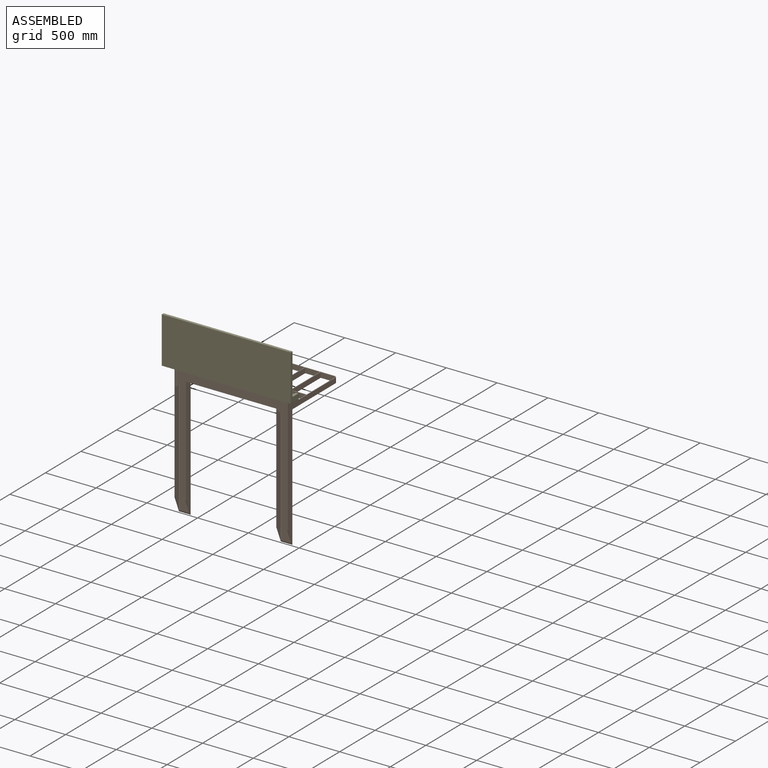
[diagram: assembled view]
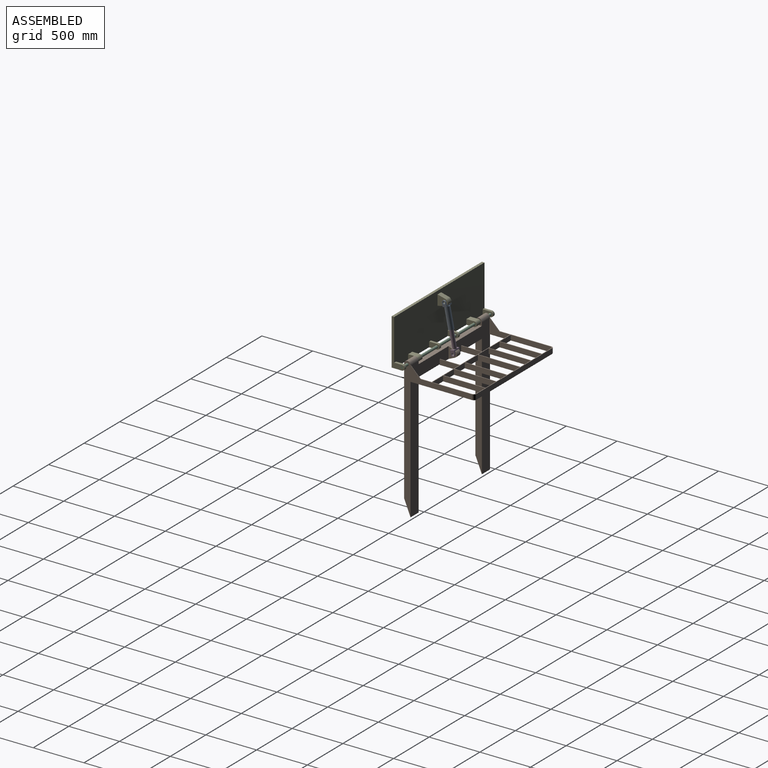
[diagram: assembled view, second angle]
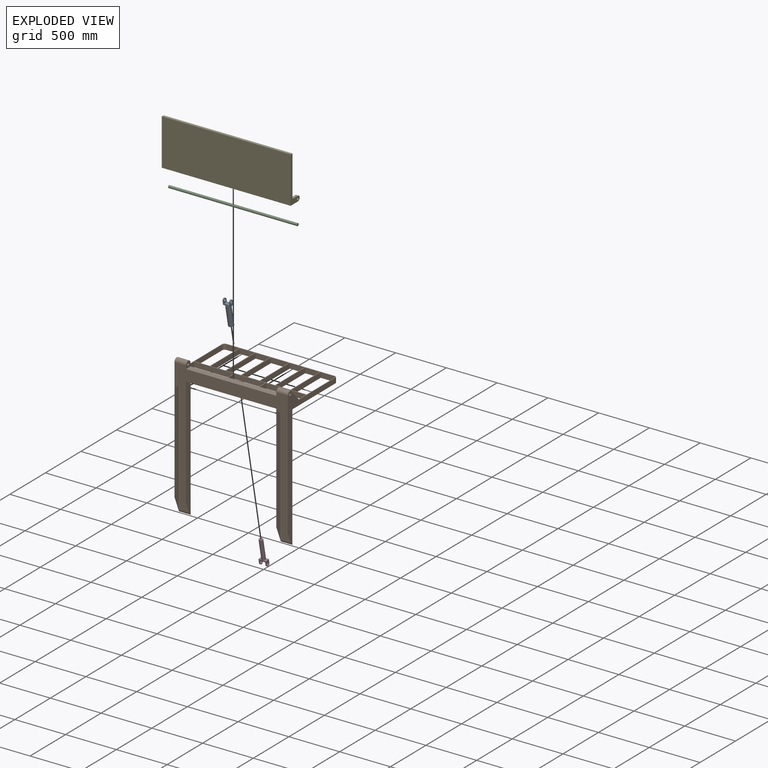
[diagram: exploded view]
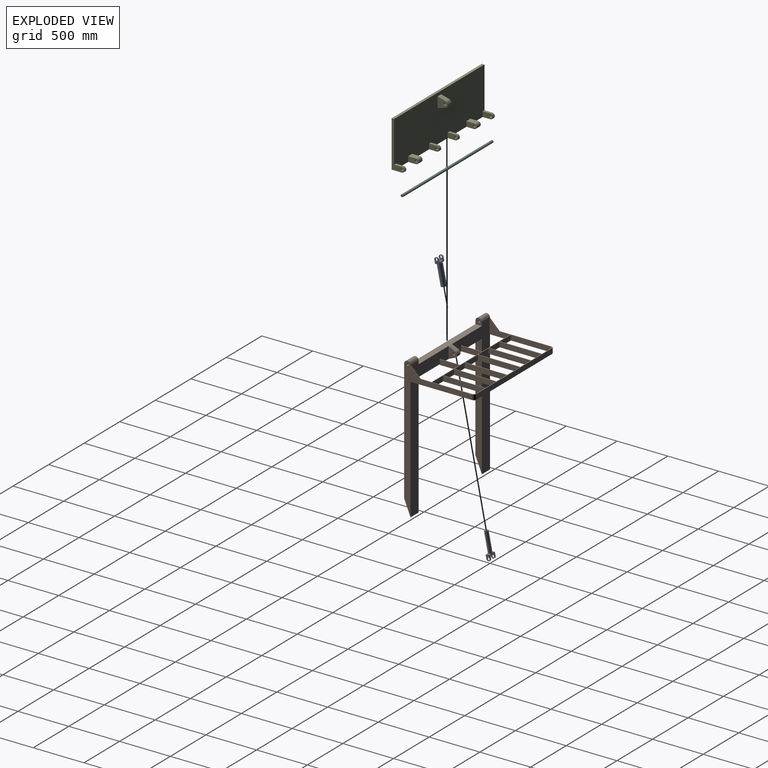
[diagram: exploded view, second angle]
ASSEMBLY  parts=5 mates=5
PART A: 19 faces, bbox 260.4x76.2x50.8 mm
  f0: plane 76.2x38.1mm, normal (0,0,1), area 1612.9mm2, adj f2,f4,f10,f11,f12,f14,f15,f16
  f1: plane 76.2x38.1mm, normal (0,0,-1), area 1612.9mm2, adj f2,f9,f10,f11,f12,f14,f15,f16
  f2: cylinder r=19.05mm len=38.1mm, axis (0,1,0), area 760.1mm2, adj f0,f1,f15,f17
  f3: cylinder r=12.7mm len=25.4mm, axis (0,1,0), area 1013.4mm2, adj f15,f17
  f4: plane 33.6x6.35mm, normal (1,0,0), area 146.2mm2, adj f0,f5
  f5: cylinder r=25.4mm len=203.2mm, axis (-1,0,0), area 32429.3mm2, adj f4,f7,f9,f10,f11
  f6: cylinder r=19.05mm len=196.85mm, axis (-1,0,0), area 23561.9mm2, adj f7,f8
  f7: plane 50.8x50.8mm, normal (-1,0,0), area 886.7mm2, adj f5,f6
  f8: plane 38.1x38.1mm, normal (-1,0,0), area 1140.1mm2, adj f6
  f9: plane 33.6x6.35mm, normal (1,0,0), area 146.2mm2, adj f1,f5
  f10: plane 38.1x21.3mm, normal (-1,0,0), area 584.4mm2, adj f0,f1,f5,f15
  f11: plane 38.1x21.3mm, normal (-1,0,0), area 584.4mm2, adj f0,f1,f5,f14
  f12: cylinder r=19.05mm len=38.1mm, axis (0,1,0), area 760.1mm2, adj f0,f1,f14,f18
  f13: cylinder r=12.7mm len=25.4mm, axis (0,1,0), area 1013.4mm2, adj f14,f18
  f14: plane 57.15x38.1mm, normal (0,-1,0), area 1514.9mm2, adj f0,f1,f11,f12,f13
  f15: plane 57.15x38.1mm, normal (0,1,0), area 1514.9mm2, adj f0,f1,f2,f3,f10
  f16: plane 50.8x38.1mm, normal (1,0,0), area 1935.5mm2, adj f0,f1,f17,f18
  f17: plane 44.45x38.1mm, normal (0,-1,0), area 1031.1mm2, adj f0,f1,f2,f3,f16
  f18: plane 44.45x38.1mm, normal (0,1,0), area 1031.1mm2, adj f0,f1,f12,f13,f16
PART B: 93 faces, bbox 1117.6x1384.3x693.7 mm
  f0: plane 1117.6x630.2mm, normal (0,-1,0), area 39151.3mm2, adj f2,f8,f24,f42,f43,f44,f45,f46
  f1: plane 1352.55x533.4mm, normal (0,0,1), area 201572.2mm2, adj f4,f6,f8,f9,f15,f16,f17,f34
  f2: plane 1352.55x533.4mm, normal (0,0,1), area 201249.6mm2, adj f0,f16,f17,f18,f24,f26,f28,f29
  f3: plane 101.6x50.8mm, normal (0,1,0), area 5144mm2, adj f10,f11,f12,f13,f14,f38
  f4: plane 63.5x63.5mm, normal (-1,0,0), area 3092.9mm2, adj f1,f5,f6,f7,f17
  f5: plane 1200.15x1117.6mm, normal (0,0,-1), area 170160.9mm2, adj f4,f6,f8,f9,f10,f14,f15,f16
  f6: cylinder r=31.75mm len=114.3mm, axis (-1,0,0), area 11400.9mm2, adj f1,f4,f5,f8,f85
  f7: cylinder r=12.7mm len=114.3mm, axis (-1,0,0), area 9120.7mm2, adj f4,f8
  f8: plane 1384.3x668.3mm, normal (1,0,0), area 117385.1mm2, adj f0,f1,f5,f6,f7,f15,f16,f54
  f9: plane 1206.5x63.5mm, normal (-1,0,0), area 71774.1mm2, adj f1,f5,f15,f16
  f10: plane 1290.32x50.8mm, normal (-1,0,0), area 61080.5mm2, adj f3,f5,f11,f15,f38,f39,f40,f41
  f11: cylinder r=6.35mm len=1305.56mm, axis (0,-1,0), area 12967.1mm2, adj f3,f10,f12,f15
  f12: plane 1305.56x88.9mm, normal (0,0,-1), area 116064.3mm2, adj f3,f11,f13,f15
  f13: cylinder r=6.35mm len=1305.56mm, axis (0,-1,0), area 12967.1mm2, adj f3,f12,f14,f15
  f14: plane 1290.32x50.8mm, normal (1,0,0), area 61564.4mm2, adj f3,f5,f13,f15,f38,f39,f40,f41
  f15: plane 152.4x114.3mm, normal (0,0.38,-0.92), area 3819.2mm2, adj f1,f5,f8,f9,f10,f11,f12,f13
  f16: plane 1117.6x693.7mm, normal (0,1,0), area 96812.4mm2, adj f1,f2,f5,f8,f9,f24,f29,f32
  f17: plane 889x63.5mm, normal (0,-1,0), area 56451.5mm2, adj f1,f2,f4,f5,f28,f30
  f18: plane 152.4x114.3mm, normal (0,0.38,-0.92), area 3819.2mm2, adj f2,f5,f19,f20,f21,f22,f23,f24
  f19: plane 1290.32x50.8mm, normal (-1,0,0), area 61725.7mm2, adj f5,f18,f20,f27,f36,f37
  f20: cylinder r=6.35mm len=1305.56mm, axis (0,-1,0), area 12967.1mm2, adj f18,f19,f21,f27
  f21: plane 1305.56x88.9mm, normal (0,0,-1), area 116064.3mm2, adj f18,f20,f22,f27
  f22: cylinder r=6.35mm len=1305.56mm, axis (0,-1,0), area 12967.1mm2, adj f18,f21,f23,f27
  f23: plane 1290.32x50.8mm, normal (1,0,0), area 61241.8mm2, adj f5,f18,f22,f27,f36,f37
  f24: plane 1384.3x668.3mm, normal (-1,0,0), area 117385.1mm2, adj f0,f2,f5,f16,f18,f25,f26,f52
  f25: cylinder r=12.7mm len=114.3mm, axis (1,0,0), area 9120.7mm2, adj f24,f28
  f26: cylinder r=31.75mm len=114.3mm, axis (1,0,0), area 11400.9mm2, adj f2,f5,f24,f28,f86
  f27: plane 101.6x50.8mm, normal (0,1,0), area 5144mm2, adj f19,f20,f21,f22,f23,f37
  f28: plane 63.5x63.5mm, normal (1,0,0), area 3092.9mm2, adj f2,f5,f17,f25,f26
  f29: plane 1206.5x63.5mm, normal (1,0,0), area 71774.1mm2, adj f2,f5,f16,f18
  f30: plane 63.63x50.8mm, normal (0,-0.91,0.4), area 3533.7mm2, adj f17,f31,f34,f35
  f31: cylinder r=31.75mm len=58.09mm, axis (-1,0,0), area 3725.3mm2, adj f30,f32,f34,f35
  f32: plane 63.63x50.8mm, normal (0,0.91,0.4), area 3533.7mm2, adj f16,f31,f34,f35
  f33: cylinder r=12.7mm len=50.8mm, axis (-1,0,0), area 4053.7mm2, adj f34,f35
  f34: plane 114.3x82.55mm, normal (1,0,0), area 5769.2mm2, adj f1,f30,f31,f32,f33
  f35: plane 114.3x82.55mm, normal (-1,0,0), area 5769.2mm2, adj f2,f30,f31,f32,f33
  f36: plane 101.6x76.2mm, normal (0.6,0.8,0), area 806.4mm2, adj f5,f19,f23,f37
  f37: plane 190.5x101.6mm, normal (0,0,1), area 15483.8mm2, adj f19,f23,f27,f36
  f38: plane 190.5x101.6mm, normal (0,0,1), area 15483.8mm2, adj f3,f10,f14,f39
  f39: plane 101.6x76.2mm, normal (0.6,-0.8,0), area 2419.4mm2, adj f10,f14,f38,f41
  f40: plane 101.6x76.2mm, normal (-0.6,0.8,0), area 3225.8mm2, adj f5,f10,f14,f41
  f41: plane 101.6x82.55mm, normal (0,0,1), area 645.2mm2, adj f10,f14,f39,f40
  f42: plane 414.3x50.8mm, normal (-1,0,0), area 21046.5mm2, adj f0,f16,f43,f84
  f43: plane 127x50.8mm, normal (0,0,-1), area 6451.6mm2, adj f0,f16,f42,f44
  f44: cylinder r=25.4mm len=50.8mm, axis (0,1,0), area 2026.8mm2, adj f0,f16,f43,f45
  f45: plane 388.9x50.8mm, normal (1,0,0), area 19756.1mm2, adj f0,f16,f44,f84
  f46: plane 146.05x50.8mm, normal (0,0,-1), area 7419.3mm2, adj f0,f16,f47,f78
  f47: plane 414.3x50.8mm, normal (1,0,0), area 21046.5mm2, adj f0,f16,f46,f48
  f48: plane 146.05x50.8mm, normal (0,0,1), area 7419.3mm2, adj f0,f16,f47,f78
  f49: plane 146.05x50.8mm, normal (0,0,-1), area 7419.3mm2, adj f0,f16,f50,f79
  f50: plane 414.3x50.8mm, normal (1,0,0), area 21046.5mm2, adj f0,f16,f49,f51
  f51: plane 146.05x50.8mm, normal (0,0,1), area 7419.3mm2, adj f0,f16,f50,f79
  f52: cylinder r=25.4mm len=50.8mm, axis (0,1,0), area 2026.8mm2, adj f0,f16,f24,f53
  f53: plane 1066.8x50.8mm, normal (0,0,1), area 54193.4mm2, adj f0,f16,f52,f54
  f54: cylinder r=25.4mm len=50.8mm, axis (0,1,0), area 2026.8mm2, adj f0,f8,f16,f53
  f55: plane 203.2x146.05mm, normal (-1,0,0), area 14858.8mm2, adj f0,f1,f16,f56,f85
  f56: plane 393.7x50.8mm, normal (0,0,-1), area 20000mm2, adj f0,f16,f55,f57
  f57: plane 196.85x50.8mm, normal (1,0,0), area 10000mm2, adj f0,f16,f56,f58
  f58: plane 50.8x6.35mm, normal (0,0,-1), area 322.6mm2, adj f0,f16,f57,f59
  f59: plane 196.85x50.8mm, normal (-1,0,0), area 10000mm2, adj f0,f16,f58,f60
  f60: plane 304.8x50.8mm, normal (0,0,-1), area 15483.8mm2, adj f0,f16,f59,f61
  f61: plane 203.2x50.8mm, normal (1,0,0), area 10322.6mm2, adj f0,f2,f16,f60
  f62: plane 203.2x50.8mm, normal (-1,0,0), area 10322.6mm2, adj f0,f2,f16,f63
  f63: plane 393.7x50.8mm, normal (0,0,-1), area 20000mm2, adj f0,f16,f62,f64
  f64: plane 203.2x146.05mm, normal (1,0,0), area 14858.8mm2, adj f0,f2,f16,f63,f86
  f65: plane 414.3x50.8mm, normal (-1,0,0), area 21046.5mm2, adj f0,f16,f66,f80
  f66: plane 146.05x50.8mm, normal (0,0,-1), area 7419.3mm2, adj f0,f16,f65,f67
  f67: plane 414.3x50.8mm, normal (1,0,0), area 21046.5mm2, adj f0,f16,f66,f80
  f68: plane 414.3x50.8mm, normal (-1,0,0), area 21046.5mm2, adj f0,f16,f69,f81
  f69: plane 146.05x50.8mm, normal (0,0,-1), area 7419.3mm2, adj f0,f16,f68,f70
  f70: plane 414.3x50.8mm, normal (1,0,0), area 21046.5mm2, adj f0,f16,f69,f81
  f71: plane 152.4x50.8mm, normal (0,0,1), area 7741.9mm2, adj f0,f16,f72,f82
  f72: plane 388.9x50.8mm, normal (-1,0,0), area 19756.1mm2, adj f0,f16,f71,f73
  f73: cylinder r=25.4mm len=50.8mm, axis (0,1,0), area 2026.8mm2, adj f0,f16,f72,f74
  f74: plane 127x50.8mm, normal (0,0,-1), area 6451.6mm2, adj f0,f16,f73,f82
  f75: plane 177.8x50.8mm, normal (0,0,-1), area 9032.2mm2, adj f0,f16,f76,f83
  f76: plane 414.3x50.8mm, normal (1,0,0), area 21046.5mm2, adj f0,f16,f75,f77
  f77: plane 177.8x50.8mm, normal (0,0,1), area 9032.2mm2, adj f0,f16,f76,f83
  f78: plane 414.3x50.8mm, normal (-1,0,0), area 21046.5mm2, adj f0,f16,f46,f48
  f79: plane 414.3x50.8mm, normal (-1,0,0), area 21046.5mm2, adj f0,f16,f49,f51
  f80: plane 146.05x50.8mm, normal (0,0,1), area 7419.3mm2, adj f0,f16,f65,f67
  f81: plane 146.05x50.8mm, normal (0,0,1), area 7419.3mm2, adj f0,f16,f68,f70
  f82: plane 414.3x50.8mm, normal (1,0,0), area 21046.5mm2, adj f0,f16,f71,f74
  f83: plane 414.3x50.8mm, normal (-1,0,0), area 21046.5mm2, adj f0,f16,f75,f77
  f84: plane 152.4x50.8mm, normal (0,0,1), area 7741.9mm2, adj f0,f16,f42,f45
  f85: plane 95.25x95.25mm, normal (0,-0.71,0.71), area 855.4mm2, adj f0,f6,f8,f55
  f86: plane 95.25x95.25mm, normal (0,-0.71,0.71), area 855.4mm2, adj f0,f24,f26,f64
  f87: plane 889x50.8mm, normal (0,1,0), area 45161.2mm2, adj f88,f89,f91,f92
  f88: plane 889x101.6mm, normal (0,0,-1), area 90322.4mm2, adj f87,f90,f91,f92
  f89: plane 889x101.6mm, normal (0,0,1), area 90322.4mm2, adj f87,f90,f91,f92
  f90: plane 889x50.8mm, normal (0,-1,0), area 45161.2mm2, adj f88,f89,f91,f92
  f91: plane 101.6x50.8mm, normal (1,0,0), area 5161.3mm2, adj f87,f88,f89,f90
  f92: plane 101.6x50.8mm, normal (-1,0,0), area 5161.3mm2, adj f87,f88,f89,f90
PART C: 3 faces, bbox 1270x25.4x25.4 mm
  f0: cylinder r=12.7mm len=1270mm, axis (1,0,0), area 101341.5mm2, adj f1,f2
  f1: plane 25.4x25.4mm, normal (-1,0,0), area 506.7mm2, adj f0
  f2: plane 25.4x25.4mm, normal (1,0,0), area 506.7mm2, adj f0
PART D: 15 faces, bbox 254x76.2x38.1 mm
  f0: plane 38.1x38.1mm, normal (1,0,0), area 881.6mm2, adj f1,f3,f9,f13
  f1: plane 76.2x38.1mm, normal (0,0,1), area 1612.9mm2, adj f0,f2,f5,f6,f8,f9,f10,f11
  f2: cylinder r=19.05mm len=38.1mm, axis (0,1,0), area 760.1mm2, adj f1,f3,f8,f10
  f3: plane 76.2x38.1mm, normal (0,0,-1), area 1612.9mm2, adj f0,f2,f5,f6,f8,f9,f10,f11
  f4: cylinder r=12.7mm len=25.4mm, axis (0,1,0), area 1013.4mm2, adj f8,f10
  f5: cylinder r=19.05mm len=38.1mm, axis (0,1,0), area 760.1mm2, adj f1,f3,f9,f11
  f6: plane 38.1x38.1mm, normal (1,0,0), area 881.6mm2, adj f1,f3,f8,f13
  f7: cylinder r=12.7mm len=25.4mm, axis (0,1,0), area 1013.4mm2, adj f9,f11
  f8: plane 57.15x38.1mm, normal (0,-1,0), area 1514.9mm2, adj f1,f2,f3,f4,f6
  f9: plane 57.15x38.1mm, normal (0,1,0), area 1514.9mm2, adj f0,f1,f3,f5,f7
  f10: plane 44.45x38.1mm, normal (0,1,0), area 1031.1mm2, adj f1,f2,f3,f4,f12
  f11: plane 44.45x38.1mm, normal (0,-1,0), area 1031.1mm2, adj f1,f3,f5,f7,f12
  f12: plane 50.8x38.1mm, normal (-1,0,0), area 1935.5mm2, adj f1,f3,f10,f11
  f13: cylinder r=19.05mm len=196.85mm, axis (-1,0,0), area 23561.9mm2, adj f0,f6,f14
  f14: plane 38.1x38.1mm, normal (1,0,0), area 1140.1mm2, adj f13
PART E: 40 faces, bbox 1270x127x457.2 mm
  f0: plane 101.6x101.6mm, normal (1,0,0), area 6921mm2, adj f1,f36,f37,f38,f39
  f1: plane 1270x457.2mm, normal (0,1,0), area 564515mm2, adj f0,f2,f4,f6,f7,f10,f11,f12
  f2: plane 76.2x57.15mm, normal (0,0,1), area 4354.8mm2, adj f1,f3,f6,f34
  f3: cylinder r=25.4mm len=57.15mm, axis (-1,0,0), area 4560.4mm2, adj f2,f4,f6,f34
  f4: plane 1270x101.6mm, normal (0,0,-1), area 48709.6mm2, adj f1,f3,f6,f8,f10,f11,f13,f15
  f5: cylinder r=12.7mm len=57.15mm, axis (-1,0,0), area 4560.4mm2, adj f6,f34
  f6: plane 101.6x50.8mm, normal (-1,0,0), area 4377.7mm2, adj f1,f2,f3,f4,f5
  f7: plane 76.2x25.4mm, normal (0,0,1), area 1935.5mm2, adj f1,f8,f10,f11
  f8: cylinder r=25.4mm len=50.8mm, axis (-1,0,0), area 2026.8mm2, adj f4,f7,f10,f11
  f9: cylinder r=12.7mm len=25.4mm, axis (-1,0,0), area 2026.8mm2, adj f10,f11
  f10: plane 101.6x50.8mm, normal (1,0,0), area 4377.7mm2, adj f1,f4,f7,f8,f9
  f11: plane 101.6x50.8mm, normal (-1,0,0), area 4377.7mm2, adj f1,f4,f7,f8,f9
  f12: plane 76.2x25.4mm, normal (0,0,1), area 1935.5mm2, adj f1,f13,f15,f16
  f13: cylinder r=25.4mm len=50.8mm, axis (-1,0,0), area 2026.8mm2, adj f4,f12,f15,f16
  f14: cylinder r=12.7mm len=25.4mm, axis (-1,0,0), area 2026.8mm2, adj f15,f16
  f15: plane 101.6x50.8mm, normal (1,0,0), area 4377.7mm2, adj f1,f4,f12,f13,f14
  f16: plane 101.6x50.8mm, normal (-1,0,0), area 4377.7mm2, adj f1,f4,f12,f13,f14
  f17: plane 76.2x57.15mm, normal (0,0,1), area 4354.8mm2, adj f1,f18,f20,f33
  f18: cylinder r=25.4mm len=57.15mm, axis (-1,0,0), area 4560.4mm2, adj f4,f17,f20,f33
  f19: cylinder r=12.7mm len=57.15mm, axis (-1,0,0), area 4560.4mm2, adj f20,f33
  f20: plane 101.6x50.8mm, normal (1,0,0), area 4377.7mm2, adj f1,f4,f17,f18,f19
  f21: plane 1270x25.4mm, normal (0,0,1), area 32258mm2, adj f1,f22,f26,f32
  f22: plane 1270x457.2mm, normal (0,-1,0), area 580644mm2, adj f4,f21,f26,f32
  f23: cylinder r=25.4mm len=50.8mm, axis (-1,0,0), area 2026.8mm2, adj f4,f24,f26,f27
  f24: plane 76.2x25.4mm, normal (0,0,1), area 1935.5mm2, adj f1,f23,f26,f27
  f25: cylinder r=12.7mm len=25.4mm, axis (-1,0,0), area 2026.8mm2, adj f26,f27
  f26: plane 457.2x127mm, normal (1,0,0), area 15990.5mm2, adj f1,f4,f21,f22,f23,f24,f25
  f27: plane 101.6x50.8mm, normal (-1,0,0), area 4377.7mm2, adj f1,f4,f23,f24,f25
  f28: plane 101.6x50.8mm, normal (1,0,0), area 4377.7mm2, adj f1,f4,f29,f30,f31
  f29: plane 76.2x25.4mm, normal (0,0,1), area 1935.5mm2, adj f1,f28,f30,f32
  f30: cylinder r=25.4mm len=50.8mm, axis (1,0,0), area 2026.8mm2, adj f4,f28,f29,f32
  f31: cylinder r=12.7mm len=25.4mm, axis (1,0,0), area 2026.8mm2, adj f28,f32
  f32: plane 457.2x127mm, normal (-1,0,0), area 15990.5mm2, adj f1,f4,f21,f22,f29,f30,f31
  f33: plane 101.6x50.8mm, normal (-1,0,0), area 4377.7mm2, adj f1,f4,f17,f18,f19
  f34: plane 101.6x50.8mm, normal (1,0,0), area 4377.7mm2, adj f1,f2,f3,f4,f5
  f35: plane 101.6x101.6mm, normal (-1,0,0), area 6921mm2, adj f1,f36,f37,f38,f39
  f36: plane 77.78x50.8mm, normal (0,0.25,-0.97), area 4080.4mm2, adj f0,f1,f35,f37
  f37: cylinder r=31.75mm len=61.49mm, axis (1,0,0), area 4253mm2, adj f0,f35,f36,f39
  f38: cylinder r=12.7mm len=50.8mm, axis (1,0,0), area 4053.7mm2, adj f0,f35
  f39: plane 77.78x50.8mm, normal (0,0.25,0.97), area 4080.4mm2, adj f0,f1,f35,f37
PLACE A rot(axis=(-0.53,-0.53,-0.65),113.6deg) t=(38.1,125.39,-127.64)mm
PLACE B rot(axis=(-1,0,0),90deg) t=(0,279.4,-127)mm
PLACE C at identity
PLACE D rot(axis=(-0.53,-0.53,-0.65),113.6deg) t=(38.1,158.75,-292.1)mm
PLACE E at identity fixed
MATE fastened C.f0 <-> E.f8  axis (-1,0,0) through (-635,76.2,-203.2)mm
MATE revolute B.f31 <-> D.f2  axis (-1,0,0) through (25.4,158.75,-292.1)mm
MATE revolute A.f2 <-> E.f37  axis (1,0,0) through (-25.4,69.85,146.18)mm
MATE cylindrical D.f13 <-> A.f5  axis (0,-0.2,0.98) through (0,112.04,-61.84)mm
MATE revolute B.f6 <-> E.f8  axis (-1,0,0) through (444.5,76.2,-203.2)mm
